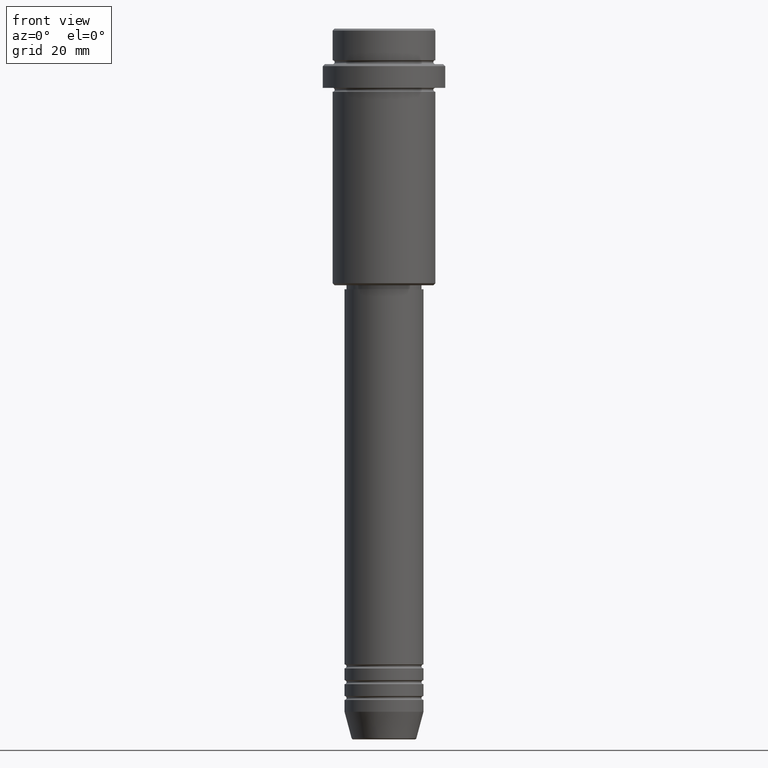
[diagram: clean part render]
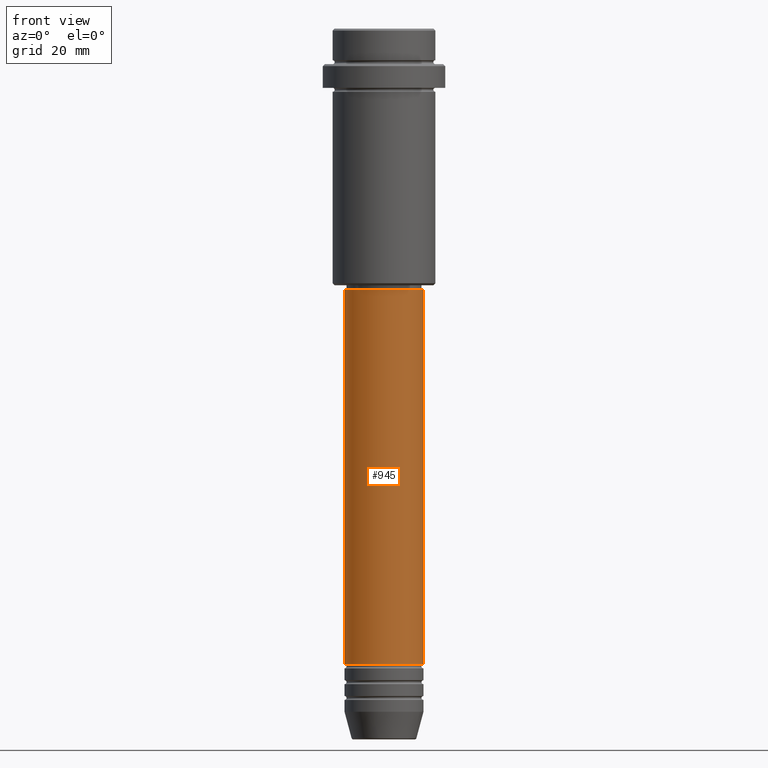
[diagram: same view with one face highlighted and labeled with its STEP entity id]
A machine part, front view. The second image highlights one B-rep face of the part: STEP entity #945.
In plain terms, the highlighted cylindrical surface (partial cylindrical patch) has radius 10 mm, axis along (-0, -0, 1).
Its self-contained STEP definition (entity closure, byte-faithful):
#23 = ORIENTED_EDGE ( 'NONE', *, *, #894, .F. ) ;
#39 = CIRCLE ( 'NONE', #459, 10.00000000000000000 ) ;
#153 = DIRECTION ( 'NONE',  ( 1.000000000000000000, 0.000000000000000000, 0.000000000000000000 ) ) ;
#154 = CIRCLE ( 'NONE', #771, 10.00000000000000178 ) ;
#194 = EDGE_LOOP ( 'NONE', ( #23, #1249, #623, #947 ) ) ;
#212 = VERTEX_POINT ( 'NONE', #1417 ) ;
#252 = VERTEX_POINT ( 'NONE', #341 ) ;
#264 = DIRECTION ( 'NONE',  ( -0.000000000000000000, -0.000000000000000000, 1.000000000000000000 ) ) ;
#279 = DIRECTION ( 'NONE',  ( -0.000000000000000000, -0.000000000000000000, 1.000000000000000000 ) ) ;
#298 = VERTEX_POINT ( 'NONE', #1364 ) ;
#340 = VECTOR ( 'NONE', #264, 1000.000000000000000 ) ;
#341 = CARTESIAN_POINT ( 'NONE',  ( -10.00000000000000000, 1.224646799147353256E-15, -160.9999999999998579 ) ) ;
#367 = CARTESIAN_POINT ( 'NONE',  ( -10.00000000000000178, 1.224646799147353454E-15, 0.000000000000000000 ) ) ;
#419 = EDGE_CURVE ( 'NONE', #212, #1258, #154, .T. ) ;
#456 = CARTESIAN_POINT ( 'NONE',  ( 10.00000000000000178, 0.000000000000000000, -66.00000000000000000 ) ) ;
#459 = AXIS2_PLACEMENT_3D ( 'NONE', #1065, #968, #1390 ) ;
#480 = AXIS2_PLACEMENT_3D ( 'NONE', #912, #279, #153 ) ;
#487 = EDGE_CURVE ( 'NONE', #252, #298, #39, .T. ) ;
#488 = CYLINDRICAL_SURFACE ( 'NONE', #480, 10.00000000000000178 ) ;
#511 = DIRECTION ( 'NONE',  ( -0.000000000000000000, -0.000000000000000000, 1.000000000000000000 ) ) ;
#614 = CARTESIAN_POINT ( 'NONE',  ( 0.000000000000000000, 0.000000000000000000, -66.00000000000000000 ) ) ;
#619 = EDGE_CURVE ( 'NONE', #298, #1258, #1329, .T. ) ;
#623 = ORIENTED_EDGE ( 'NONE', *, *, #619, .T. ) ;
#771 = AXIS2_PLACEMENT_3D ( 'NONE', #614, #511, #1372 ) ;
#894 = EDGE_CURVE ( 'NONE', #252, #212, #923, .T. ) ;
#912 = CARTESIAN_POINT ( 'NONE',  ( 0.000000000000000000, 0.000000000000000000, 0.000000000000000000 ) ) ;
#923 = LINE ( 'NONE', #367, #340 ) ;
#945 = ADVANCED_FACE ( 'NONE', ( #1222 ), #488, .T. ) ;
#947 = ORIENTED_EDGE ( 'NONE', *, *, #419, .F. ) ;
#968 = DIRECTION ( 'NONE',  ( -0.000000000000000000, -0.000000000000000000, 1.000000000000000000 ) ) ;
#1065 = CARTESIAN_POINT ( 'NONE',  ( 0.000000000000000000, 0.000000000000000000, -160.9999999999998579 ) ) ;
#1119 = DIRECTION ( 'NONE',  ( -0.000000000000000000, -0.000000000000000000, 1.000000000000000000 ) ) ;
#1203 = CARTESIAN_POINT ( 'NONE',  ( 10.00000000000000178, 0.000000000000000000, 0.000000000000000000 ) ) ;
#1222 = FACE_OUTER_BOUND ( 'NONE', #194, .T. ) ;
#1249 = ORIENTED_EDGE ( 'NONE', *, *, #487, .T. ) ;
#1258 = VERTEX_POINT ( 'NONE', #456 ) ;
#1269 = VECTOR ( 'NONE', #1119, 1000.000000000000000 ) ;
#1329 = LINE ( 'NONE', #1203, #1269 ) ;
#1364 = CARTESIAN_POINT ( 'NONE',  ( 10.00000000000000000, 0.000000000000000000, -160.9999999999998579 ) ) ;
#1372 = DIRECTION ( 'NONE',  ( 1.000000000000000000, 0.000000000000000000, 0.000000000000000000 ) ) ;
#1390 = DIRECTION ( 'NONE',  ( 1.000000000000000000, 0.000000000000000000, 0.000000000000000000 ) ) ;
#1417 = CARTESIAN_POINT ( 'NONE',  ( -10.00000000000000178, 1.224646799147353454E-15, -66.00000000000000000 ) ) ;